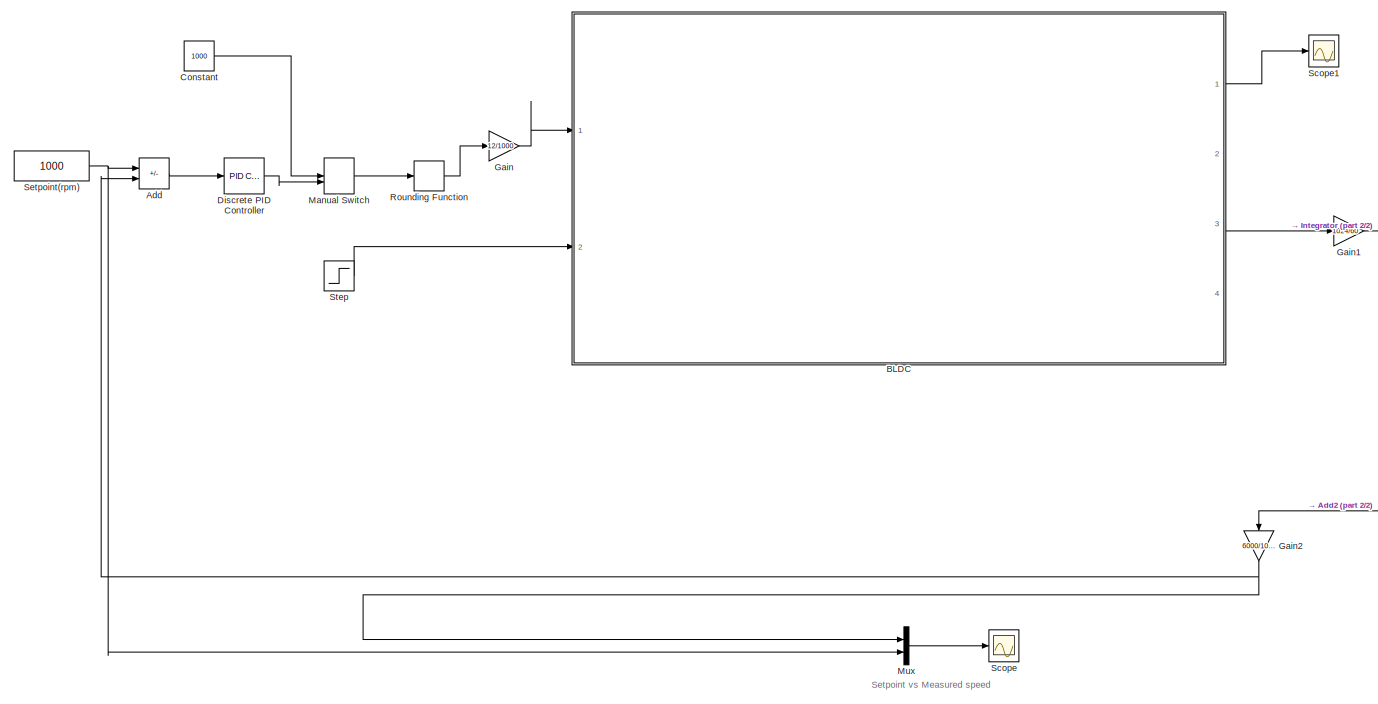
[diagram: root canvas - part 1/2, left side, full height]
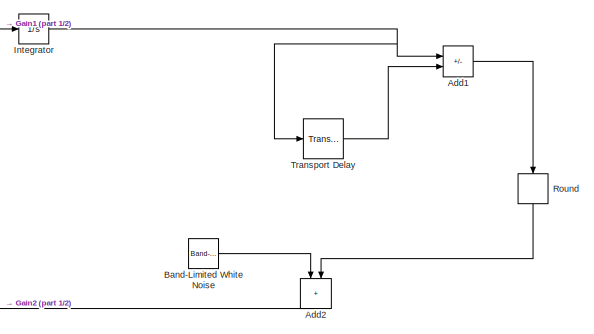
[diagram: root canvas - part 2/2, middle right region]
MODEL slx_86efe13f5232
KIND model
CONFIG AbsTol = auto
CONFIG EnableMultiTasking = off
CONFIG FixedStep = auto
CONFIG MaxStep = auto
CONFIG MinStep = auto
CONFIG RelTol = 1e-3
CONFIG SampleTimeConstraint = Unconstrained
CONFIG SolverName = VariableStepAuto
CONFIG StartTime = 0.0
CONFIG StopTime = 10.0
WORKSPACE source: mxarray member
WORKSPACE Ke = 1
WORKSPACE Ki = 1
WORKSPACE L: Simulink.Parameter (value not decoded)
WORKSPACE R: Simulink.Parameter (value not decoded)
WORKSPACE k: Simulink.Parameter (value not decoded)
WORKSPACE k1: Simulink.Parameter (value not decoded)
BLOCK [Sum] Add
  IconShape = rectangular
  Inputs = +-
  Ports = [2, 1]
BLOCK [Sum] Add1
  IconShape = rectangular
  Inputs = +-
  Ports = [2, 1]
BLOCK [Sum] Add2
  IconShape = rectangular
  NameLocation = left
  Ports = [2, 1]
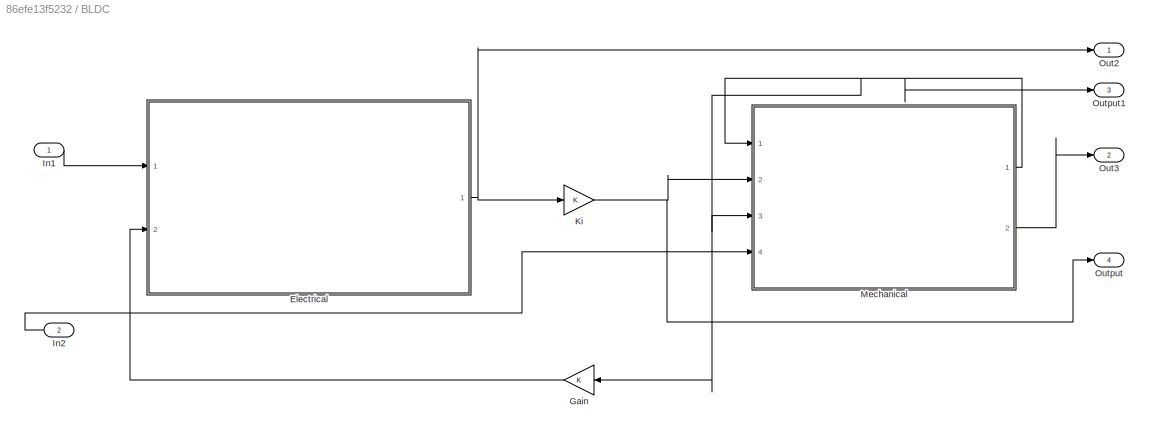
BLOCK [SubSystem] BLDC
  Ports = [2, 4]
  RequestExecContextInheritance = off
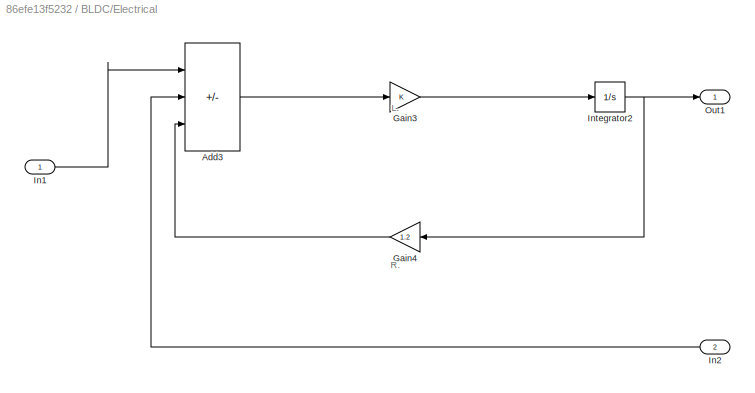
BLOCK [SubSystem] BLDC/Electrical
  Ports = [2, 1]
  RequestExecContextInheritance = off
BLOCK [Sum] BLDC/Electrical/Add3
  IconShape = rectangular
  Inputs = +--
  Ports = [3, 1]
BLOCK [Gain] BLDC/Electrical/Gain3
BLOCK [Gain] BLDC/Electrical/Gain4
  Gain = 1.2
  NameLocation = top
BLOCK [Inport] BLDC/Electrical/In1
BLOCK [Inport] BLDC/Electrical/In2
  Port = 2
BLOCK [Integrator] BLDC/Electrical/Integrator2
  Ports = [1, 1]
BLOCK [Outport] BLDC/Electrical/Out1
BLOCK [Gain] BLDC/Gain
  NameLocation = top
BLOCK [Inport] BLDC/In1
BLOCK [Inport] BLDC/In2
  Port = 2
BLOCK [Gain] BLDC/Ki
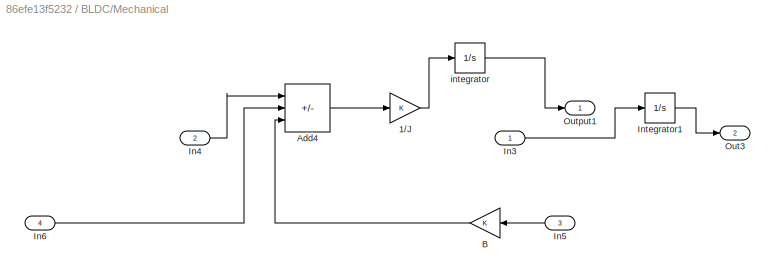
BLOCK [SubSystem] BLDC/Mechanical
  Ports = [4, 2]
  RequestExecContextInheritance = off
BLOCK [Gain] BLDC/Mechanical/1//J
BLOCK [Sum] BLDC/Mechanical/Add4
  IconShape = rectangular
  Inputs = +--
  Ports = [3, 1]
BLOCK [Gain] BLDC/Mechanical/B
  NameLocation = top
BLOCK [Inport] BLDC/Mechanical/In3
BLOCK [Inport] BLDC/Mechanical/In4
  Port = 2
BLOCK [Inport] BLDC/Mechanical/In5
  Port = 3
BLOCK [Inport] BLDC/Mechanical/In6
  Port = 4
BLOCK [Integrator] BLDC/Mechanical/Integrator1
  Ports = [1, 1]
BLOCK [Outport] BLDC/Mechanical/Out3
  Port = 2
BLOCK [Outport] BLDC/Mechanical/Output1
BLOCK [Integrator] BLDC/Mechanical/integrator
  Ports = [1, 1]
BLOCK [Outport] BLDC/Out2
BLOCK [Outport] BLDC/Out3
  Port = 2
BLOCK [Outport] BLDC/Output
  Port = 4
BLOCK [Outport] BLDC/Output1
  Port = 3
BLOCK [Reference] Band-Limited White Noise  REF=simulink/Sources/Band-Limited
White Noise
  Ports = [0, 1]
  SourceBlock = simulink/Sources/Band-Limited\nWhite Noise
  SourceProductBaseCode = SL
  SourceType = Band-Limited White Noise.
BLOCK [Constant] Constant
  Value = 1000
BLOCK [Reference] Discrete PID Controller  REF=pid_lib/PID Controller
  Ports = [1, 1]
  SourceBlock = pid_lib/PID Controller
  SourceProductBaseCode = SL
  SourceType = PID 1dof
BLOCK [Gain] Gain
  Gain = 12/1000
BLOCK [Gain] Gain1
  Gain = 1024/60
BLOCK [Gain] Gain2
  Gain = 6000/1024
  NameLocation = left
BLOCK [Integrator] Integrator
  Ports = [1, 1]
BLOCK [ManualSwitch] Manual Switch
  CurrentSetting = 0
BLOCK [Mux] Mux
  DisplayOption = bar
  Inputs = 2
  Ports = [2, 1]
BLOCK [Rounding] Round
  NameLocation = left
  Operator = round
BLOCK [Rounding] Rounding Function
  Operator = round
BLOCK [Scope] Scope
  Floating = off
  NumInputPorts = 1
  Ports = [1]
  ScopeSpecificationString = Simulink.scopes.TimeScopeBlockCfg('CurrentConfiguration', extmgr.ConfigurationSet(extmgr.Configuration('Core','General UI',true),extmgr.Configuration('Core','Source UI',true),extmgr.Configuration('Sources','WiredSimulink',true,'DataLoggingLimitDataPoints',true,'DataLoggingDecimateData',true),extmgr.Configuration('Visuals','Time Domain',true,'SerializedDisplays',{struct('MinYLimReal','0.00000','Max...<+1514ch>
BLOCK [Scope] Scope1
  Floating = off
  NumInputPorts = 1
  Ports = [1]
  ScopeSpecificationString = Simulink.scopes.TimeScopeBlockCfg('CurrentConfiguration', extmgr.ConfigurationSet(extmgr.Configuration('Core','General UI',true),extmgr.Configuration('Core','Source UI',true),extmgr.Configuration('Sources','WiredSimulink',true,'DataLoggingVariableName','ScopeData1'),extmgr.Configuration('Visuals','Time Domain',true),extmgr.Configuration('Tools','Plot Navigation',true),extmgr.Configuration('Tools',...<+40ch>
BLOCK [Constant] Setpoint(rpm)
  Value = 1000
BLOCK [Step] Step
  SampleTime = 0
BLOCK [TransportDelay] Transport Delay
  Ports = [1, 1]
ANNOTATION (root): Setpoint vs Measured speed
ANNOTATION BLDC/Electrical: L.
ANNOTATION BLDC/Electrical: R.
LINE Add1:1 -> Round:1
LINE Add2:1 -> Gain2:1
LINE Add:1 -> Discrete PID Controller:1
LINE BLDC/Electrical/Add3:1 -> BLDC/Electrical/Gain3:1
LINE BLDC/Electrical/Gain3:1 -> BLDC/Electrical/Integrator2:1
LINE BLDC/Electrical/Gain4:1 -> BLDC/Electrical/Add3:3
LINE BLDC/Electrical/In1:1 -> BLDC/Electrical/Add3:1
LINE BLDC/Electrical/In2:1 -> BLDC/Electrical/Add3:2
NET BLDC/Electrical/Integrator2:1 -> BLDC/Electrical/Gain4:1, BLDC/Electrical/Out1:1
NET BLDC/Electrical:1 -> BLDC/Ki:1, BLDC/Out2:1
LINE BLDC/Gain:1 -> BLDC/Electrical:2
LINE BLDC/In1:1 -> BLDC/Electrical:1
LINE BLDC/In2:1 -> BLDC/Mechanical:4
NET BLDC/Ki:1 -> BLDC/Mechanical:2, BLDC/Output:1
LINE BLDC/Mechanical/1//J:1 -> BLDC/Mechanical/integrator:1
LINE BLDC/Mechanical/Add4:1 -> BLDC/Mechanical/1//J:1
LINE BLDC/Mechanical/B:1 -> BLDC/Mechanical/Add4:3
LINE BLDC/Mechanical/In3:1 -> BLDC/Mechanical/Integrator1:1
LINE BLDC/Mechanical/In4:1 -> BLDC/Mechanical/Add4:1
LINE BLDC/Mechanical/In5:1 -> BLDC/Mechanical/B:1
LINE BLDC/Mechanical/In6:1 -> BLDC/Mechanical/Add4:2
LINE BLDC/Mechanical/Integrator1:1 -> BLDC/Mechanical/Out3:1
LINE BLDC/Mechanical/integrator:1 -> BLDC/Mechanical/Output1:1
NET BLDC/Mechanical:1 -> BLDC/Gain:1, BLDC/Mechanical:1, BLDC/Mechanical:3, BLDC/Output1:1
LINE BLDC/Mechanical:2 -> BLDC/Out3:1
LINE BLDC:1 -> Scope1:1
LINE BLDC:3 -> Gain1:1
LINE Band-Limited White Noise:1 -> Add2:1
LINE Constant:1 -> Manual Switch:1
LINE Discrete PID Controller:1 -> Manual Switch:2
LINE Gain1:1 -> Integrator:1
NET Gain2:1 -> Add:2, Mux:1
LINE Gain:1 -> BLDC:1
NET Integrator:1 -> Add1:1, Transport Delay:1
LINE Manual Switch:1 -> Rounding Function:1
LINE Mux:1 -> Scope:1
LINE Round:1 -> Add2:2
LINE Rounding Function:1 -> Gain:1
NET Setpoint(rpm):1 -> Add:1, Mux:2
LINE Step:1 -> BLDC:2
LINE Transport Delay:1 -> Add1:2
note: NET lines group one-source signal fan-out (src -> all destinations, sorted); 1:1 wires keep LINE
